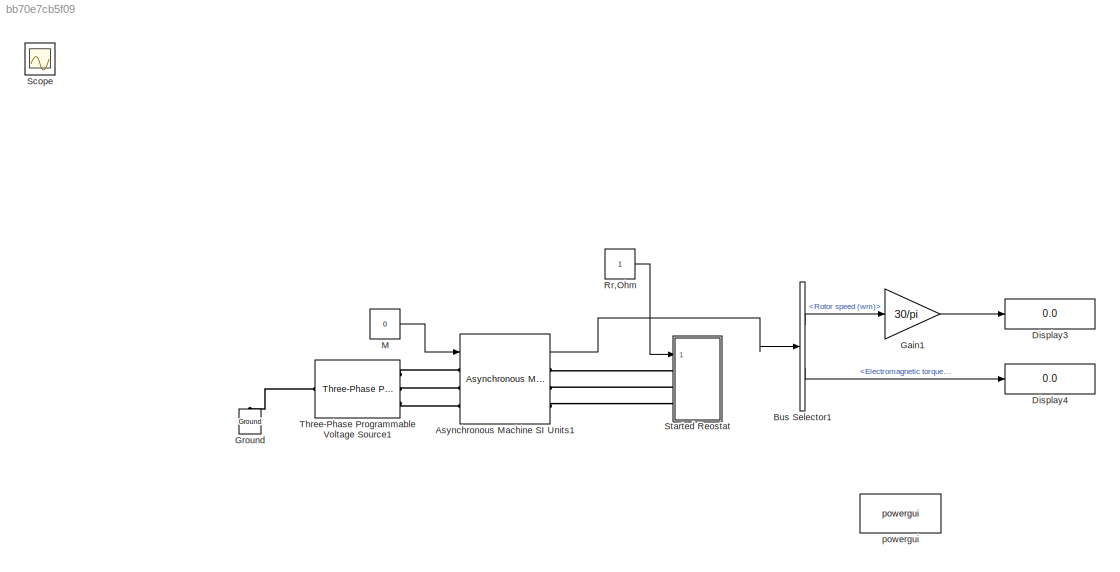
MODEL slx_bb70e7cb5f09
KIND model
CONFIG AbsTol = auto
CONFIG EnableMultiTasking = off
CONFIG FixedStep = auto
CONFIG MaxStep = auto
CONFIG MinStep = auto
CONFIG RelTol = 1e-3
CONFIG SampleTimeConstraint = Unconstrained
CONFIG Solver = VariableStepAuto
CONFIG SolverName = VariableStepAuto
CONFIG StartTime = 0.0
CONFIG StopTime = 10.0
BLOCK [Reference] Asynchronous Machine SI Units1  REF=powerlib/Machines/Asynchronous Machine
SI Units
  Ports = [1, 1, 0, 0, 0, 3, 3]
  SourceBlock = powerlib/Machines/Asynchronous Machine\nSI Units
  SourceProductBaseCode = PS
  SourceProductName = Simscape Electrical
  SourceType = Asynchronous Machine
BLOCK [BusSelector] Bus Selector1
  OutputAsBus = off
  OutputSignals = Mechanical.Rotor speed (wm),Mechanical.Electromagnetic torque Te (N*m)
  Ports = [1, 2]
BLOCK [Display] Display3
  Decimation = 1
  Ports = [1]
BLOCK [Display] Display4
  Decimation = 1
  Ports = [1]
BLOCK [Gain] Gain1
  Gain = 30/pi
  OutDataTypeStr = Inherit: Inherit via internal rule
  ParamDataTypeStr = Inherit: Inherit via internal rule
  SaturateOnIntegerOverflow = off
BLOCK [Reference] Ground  REF=powerlib/Elements/Ground
  Ports = [0, 0, 0, 0, 0, 1]
  SourceBlock = powerlib/Elements/Ground
  SourceProductBaseCode = PS
  SourceProductName = Simscape Electrical
  SourceType = Ground
BLOCK [Constant] M
  Value = 0
BLOCK [Constant] Rr,Ohm
BLOCK [Scope] Scope
  Floating = off
  NumInputPorts = 1
  Ports = [1]
  ScopeSpecificationString = Simulink.scopes.TimeScopeBlockCfg('CurrentConfiguration', extmgr.ConfigurationSet(extmgr.Configuration('Core','General UI',true),extmgr.Configuration('Core','Source UI',true),extmgr.Configuration('Sources','WiredSimulink',true),extmgr.Configuration('Visuals','Time Domain',true,'SerializedDisplays',{struct('MinYLimReal','-1.70066','MaxYLimReal','15.30598','YLabelReal','','MinYLimMag','0.00000','Max...<+1343ch>
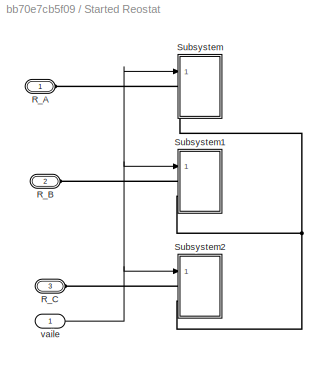
BLOCK [SubSystem] Started Reostat
  Ports = [1, 0, 0, 0, 0, 3]
  RequestExecContextInheritance = off
BLOCK [PMIOPort] Started Reostat/R_A
  Side = Left
BLOCK [PMIOPort] Started Reostat/R_B
  Port = 2
  Side = Left
BLOCK [PMIOPort] Started Reostat/R_C
  Port = 3
  Side = Left
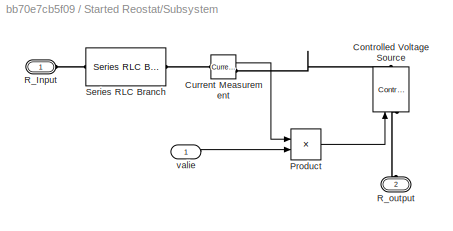
BLOCK [SubSystem] Started Reostat/Subsystem
  Ports = [1, 0, 0, 0, 0, 2]
  RequestExecContextInheritance = off
BLOCK [Reference] Started Reostat/Subsystem/Controlled Voltage Source  REF=powerlib/Electrical
Sources/Controlled Voltage Source
  Ports = [1, 0, 0, 0, 0, 1, 1]
  SourceBlock = powerlib/Electrical\nSources/Controlled Voltage Source
  SourceProductBaseCode = PS
  SourceProductName = Simscape Electrical
  SourceType = Controlled Voltage Source
BLOCK [Reference] Started Reostat/Subsystem/Current Measurement  REF=powerlib/Measurements/Current Measurement
  Ports = [0, 1, 0, 0, 0, 1, 1]
  SourceBlock = powerlib/Measurements/Current Measurement
  SourceProductBaseCode = PS
  SourceProductName = Simscape Electrical
  SourceType = Current Measurement
  UserDataPersistent = on
BLOCK [Product] Started Reostat/Subsystem/Product
  InputSameDT = off
  OutDataTypeStr = Inherit: Inherit via internal rule
  Ports = [2, 1]
  RndMeth = Floor
  SaturateOnIntegerOverflow = off
BLOCK [PMIOPort] Started Reostat/Subsystem/R_Input
  Side = Left
BLOCK [PMIOPort] Started Reostat/Subsystem/R_output
  Port = 2
  Side = Left
BLOCK [Reference] Started Reostat/Subsystem/Series RLC Branch  REF=powerlib/Elements/Series RLC Branch
  Ports = [0, 0, 0, 0, 0, 1, 1]
  SourceBlock = powerlib/Elements/Series RLC Branch
  SourceProductBaseCode = PS
  SourceProductName = Simscape Electrical
  SourceType = Series RLC Branch
BLOCK [Inport] Started Reostat/Subsystem/valie
  IconDisplay = Port number
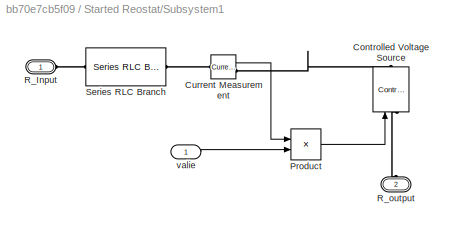
BLOCK [SubSystem] Started Reostat/Subsystem1
  Ports = [1, 0, 0, 0, 0, 2]
  RequestExecContextInheritance = off
BLOCK [Reference] Started Reostat/Subsystem1/Controlled Voltage Source  REF=powerlib/Electrical
Sources/Controlled Voltage Source
  Ports = [1, 0, 0, 0, 0, 1, 1]
  SourceBlock = powerlib/Electrical\nSources/Controlled Voltage Source
  SourceProductBaseCode = PS
  SourceProductName = Simscape Electrical
  SourceType = Controlled Voltage Source
BLOCK [Reference] Started Reostat/Subsystem1/Current Measurement  REF=powerlib/Measurements/Current Measurement
  Ports = [0, 1, 0, 0, 0, 1, 1]
  SourceBlock = powerlib/Measurements/Current Measurement
  SourceProductBaseCode = PS
  SourceProductName = Simscape Electrical
  SourceType = Current Measurement
  UserDataPersistent = on
BLOCK [Product] Started Reostat/Subsystem1/Product
  InputSameDT = off
  OutDataTypeStr = Inherit: Inherit via internal rule
  Ports = [2, 1]
  RndMeth = Floor
  SaturateOnIntegerOverflow = off
BLOCK [PMIOPort] Started Reostat/Subsystem1/R_Input
  Side = Left
BLOCK [PMIOPort] Started Reostat/Subsystem1/R_output
  Port = 2
  Side = Left
BLOCK [Reference] Started Reostat/Subsystem1/Series RLC Branch  REF=powerlib/Elements/Series RLC Branch
  Ports = [0, 0, 0, 0, 0, 1, 1]
  SourceBlock = powerlib/Elements/Series RLC Branch
  SourceProductBaseCode = PS
  SourceProductName = Simscape Electrical
  SourceType = Series RLC Branch
BLOCK [Inport] Started Reostat/Subsystem1/valie
  IconDisplay = Port number
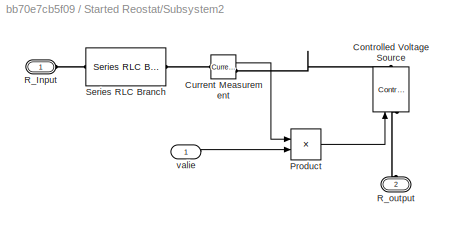
BLOCK [SubSystem] Started Reostat/Subsystem2
  Ports = [1, 0, 0, 0, 0, 2]
  RequestExecContextInheritance = off
BLOCK [Reference] Started Reostat/Subsystem2/Controlled Voltage Source  REF=powerlib/Electrical
Sources/Controlled Voltage Source
  Ports = [1, 0, 0, 0, 0, 1, 1]
  SourceBlock = powerlib/Electrical\nSources/Controlled Voltage Source
  SourceProductBaseCode = PS
  SourceProductName = Simscape Electrical
  SourceType = Controlled Voltage Source
BLOCK [Reference] Started Reostat/Subsystem2/Current Measurement  REF=powerlib/Measurements/Current Measurement
  Ports = [0, 1, 0, 0, 0, 1, 1]
  SourceBlock = powerlib/Measurements/Current Measurement
  SourceProductBaseCode = PS
  SourceProductName = Simscape Electrical
  SourceType = Current Measurement
  UserDataPersistent = on
BLOCK [Product] Started Reostat/Subsystem2/Product
  InputSameDT = off
  OutDataTypeStr = Inherit: Inherit via internal rule
  Ports = [2, 1]
  RndMeth = Floor
  SaturateOnIntegerOverflow = off
BLOCK [PMIOPort] Started Reostat/Subsystem2/R_Input
  Side = Left
BLOCK [PMIOPort] Started Reostat/Subsystem2/R_output
  Port = 2
  Side = Left
BLOCK [Reference] Started Reostat/Subsystem2/Series RLC Branch  REF=powerlib/Elements/Series RLC Branch
  Ports = [0, 0, 0, 0, 0, 1, 1]
  SourceBlock = powerlib/Elements/Series RLC Branch
  SourceProductBaseCode = PS
  SourceProductName = Simscape Electrical
  SourceType = Series RLC Branch
BLOCK [Inport] Started Reostat/Subsystem2/valie
  IconDisplay = Port number
BLOCK [Inport] Started Reostat/vaile
  IconDisplay = Port number
BLOCK [Reference] Three-Phase Programmable Voltage Source1  REF=powerlib/Electrical
Sources/Three-Phase
Programmable
Voltage Source
  Ports = [0, 0, 0, 0, 0, 1, 3]
  SourceBlock = powerlib/Electrical\nSources/Three-Phase\nProgrammable\nVoltage Source
  SourceProductBaseCode = PS
  SourceProductName = Simscape Electrical
  SourceType = Three-Phase Programmable Voltage Source
BLOCK [Reference] powergui  REF=powerlib/powergui
  Ports = []
  Priority = 1
  SourceBlock = powerlib/powergui
  SourceProductBaseCode = PS
  SourceProductName = Simscape Electrical
  SourceType = PSB option menu block
LINE Asynchronous Machine SI Units1:1 -> Bus Selector1:1
LINE Bus Selector1:1 -> Gain1:1
LINE Bus Selector1:2 -> Display4:1
LINE Gain1:1 -> Display3:1
LINE M:1 -> Asynchronous Machine SI Units1:1
LINE Rr,Ohm:1 -> Started Reostat:1
LINE Started Reostat/Subsystem/Current Measurement:1 -> Started Reostat/Subsystem/Product:1
LINE Started Reostat/Subsystem/Product:1 -> Started Reostat/Subsystem/Controlled Voltage Source:1
LINE Started Reostat/Subsystem/valie:1 -> Started Reostat/Subsystem/Product:2
LINE Started Reostat/Subsystem1/Current Measurement:1 -> Started Reostat/Subsystem1/Product:1
LINE Started Reostat/Subsystem1/Product:1 -> Started Reostat/Subsystem1/Controlled Voltage Source:1
LINE Started Reostat/Subsystem1/valie:1 -> Started Reostat/Subsystem1/Product:2
LINE Started Reostat/Subsystem2/Current Measurement:1 -> Started Reostat/Subsystem2/Product:1
LINE Started Reostat/Subsystem2/Product:1 -> Started Reostat/Subsystem2/Controlled Voltage Source:1
LINE Started Reostat/Subsystem2/valie:1 -> Started Reostat/Subsystem2/Product:2
NET Started Reostat/vaile:1 -> Started Reostat/Subsystem1:1, Started Reostat/Subsystem2:1, Started Reostat/Subsystem:1
PLINE Asynchronous Machine SI Units1:LConn1 -- Three-Phase Programmable Voltage Source1:RConn1
PLINE Asynchronous Machine SI Units1:LConn2 -- Three-Phase Programmable Voltage Source1:RConn2
PLINE Asynchronous Machine SI Units1:LConn3 -- Three-Phase Programmable Voltage Source1:RConn3
PLINE Asynchronous Machine SI Units1:RConn1 -- Started Reostat:LConn1
PLINE Asynchronous Machine SI Units1:RConn2 -- Started Reostat:LConn2
PLINE Asynchronous Machine SI Units1:RConn3 -- Started Reostat:LConn3
PLINE Ground:LConn1 -- Three-Phase Programmable Voltage Source1:LConn1
PLINE Started Reostat/R_A:RConn1 -- Started Reostat/Subsystem:LConn1
PLINE Started Reostat/R_B:RConn1 -- Started Reostat/Subsystem1:LConn1
PLINE Started Reostat/R_C:RConn1 -- Started Reostat/Subsystem2:LConn1
PLINE Started Reostat/Subsystem/Controlled Voltage Source:LConn1 -- Started Reostat/Subsystem/R_output:RConn1
PLINE Started Reostat/Subsystem/Controlled Voltage Source:RConn1 -- Started Reostat/Subsystem/Current Measurement:RConn1
PLINE Started Reostat/Subsystem/Current Measurement:LConn1 -- Started Reostat/Subsystem/Series RLC Branch:RConn1
PLINE Started Reostat/Subsystem/R_Input:RConn1 -- Started Reostat/Subsystem/Series RLC Branch:LConn1
PLINE Started Reostat/Subsystem1/Controlled Voltage Source:LConn1 -- Started Reostat/Subsystem1/R_output:RConn1
PLINE Started Reostat/Subsystem1/Controlled Voltage Source:RConn1 -- Started Reostat/Subsystem1/Current Measurement:RConn1
PLINE Started Reostat/Subsystem1/Current Measurement:LConn1 -- Started Reostat/Subsystem1/Series RLC Branch:RConn1
PLINE Started Reostat/Subsystem1/R_Input:RConn1 -- Started Reostat/Subsystem1/Series RLC Branch:LConn1
PNET net1: Started Reostat/Subsystem1:LConn2 -- Started Reostat/Subsystem2:LConn2 -- Started Reostat/Subsystem:LConn2
PLINE Started Reostat/Subsystem2/Controlled Voltage Source:LConn1 -- Started Reostat/Subsystem2/R_output:RConn1
PLINE Started Reostat/Subsystem2/Controlled Voltage Source:RConn1 -- Started Reostat/Subsystem2/Current Measurement:RConn1
PLINE Started Reostat/Subsystem2/Current Measurement:LConn1 -- Started Reostat/Subsystem2/Series RLC Branch:RConn1
PLINE Started Reostat/Subsystem2/R_Input:RConn1 -- Started Reostat/Subsystem2/Series RLC Branch:LConn1
note: NET lines group one-source signal fan-out (src -> all destinations, sorted); 1:1 wires keep LINE; PNET lines group multi-terminal physical nets as a canonical sorted terminal list (undirected conserving connections); 2-terminal nets keep the pairwise PLINE form
